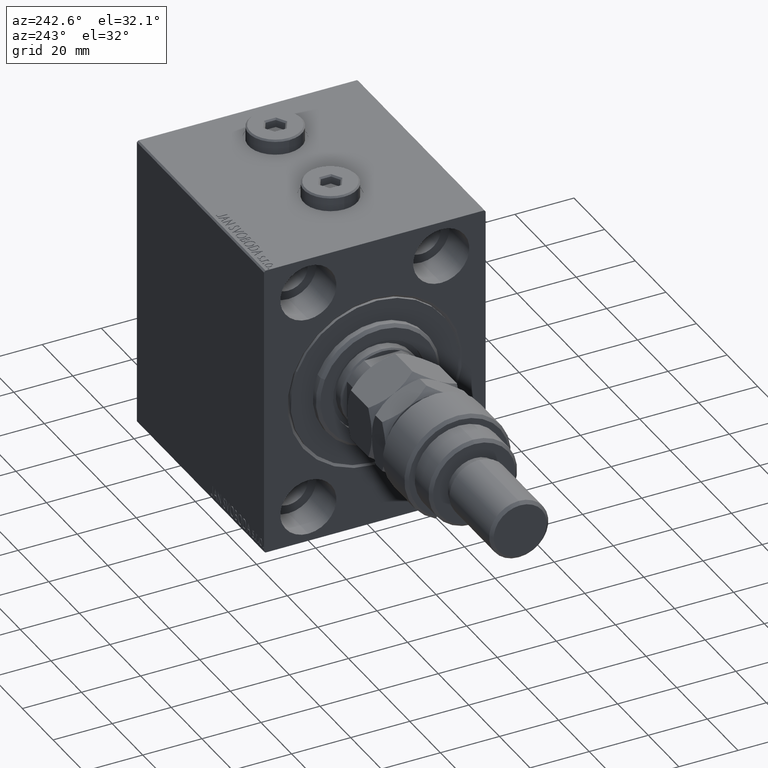
[diagram: clean part render]
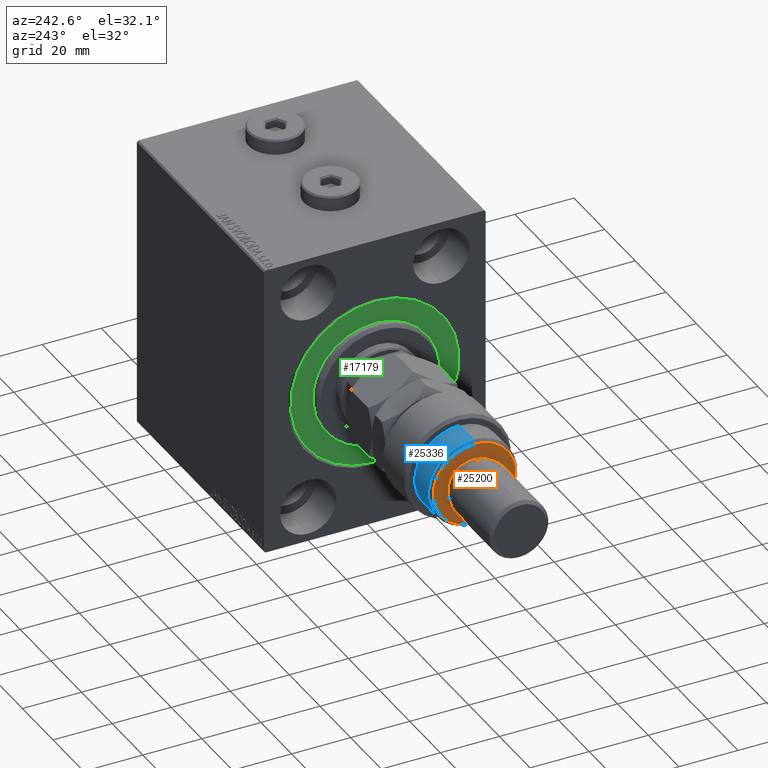
[diagram: same view with three faces highlighted in distinct colors, each labeled with its STEP entity id]
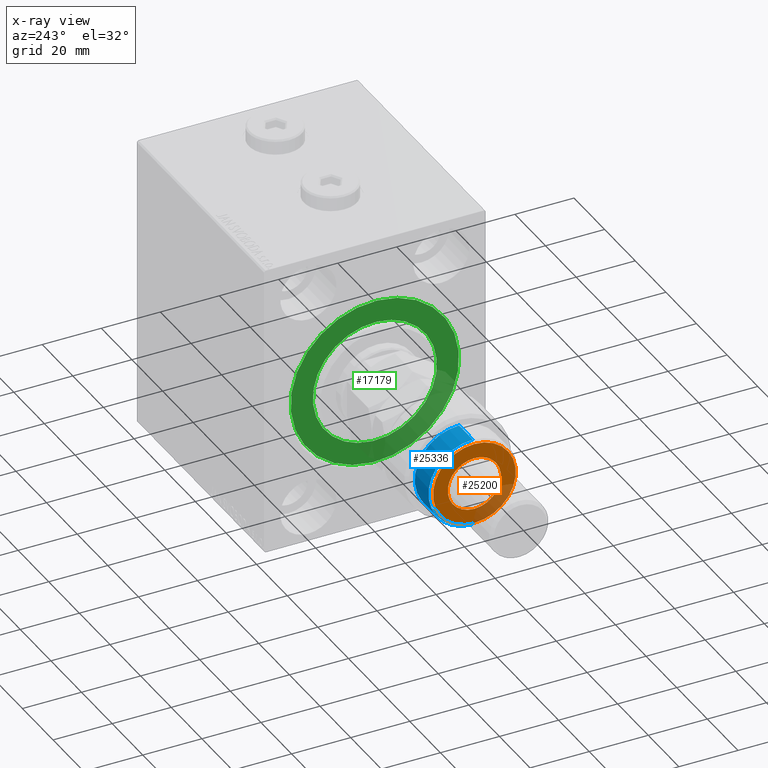
[diagram: x-ray of the same camera — body ghosted, the three highlighted faces saturated]
A machine part, auxiliary view with three faces highlighted in distinct colors.
The next image is the same camera in x-ray (body ghosted, the three faces saturated) — at least one of them is partly hidden behind the body in this view.
Their STEP definitions:

[orange] entity #25200 — the highlighted planar face has unit normal (-1, 0, 0).
#435 = EDGE_CURVE ( 'NONE', #39022, #21297, #44636, .T. ) ;
#3571 = AXIS2_PLACEMENT_3D ( 'NONE', #46064, #27644, #13564 ) ;
#3612 = CARTESIAN_POINT ( 'NONE',  ( 0.000000000000000000, 0.000000000000000000, 26.00000000000000355 ) ) ;
#5200 = DIRECTION ( 'NONE',  ( 0.000000000000000000, 0.000000000000000000, 1.000000000000000000 ) ) ;
#6119 = ORIENTED_EDGE ( 'NONE', *, *, #13909, .F. ) ;
#6900 = DIRECTION ( 'NONE',  ( 1.000000000000000000, 0.000000000000000000, -0.000000000000000000 ) ) ;
#8755 = CARTESIAN_POINT ( 'NONE',  ( -9.000000000000000000, 0.000000000000000000, 26.00000000000000355 ) ) ;
#9701 = CIRCLE ( 'NONE', #39936, 13.99999999999997513 ) ;
#10886 = CARTESIAN_POINT ( 'NONE',  ( 13.99999999999997513, 1.775737858763660437E-15, 26.00000000000000355 ) ) ;
#11979 = ORIENTED_EDGE ( 'NONE', *, *, #35409, .T. ) ;
#13564 = DIRECTION ( 'NONE',  ( 1.000000000000000000, 0.000000000000000000, 0.000000000000000000 ) ) ;
#13909 = EDGE_CURVE ( 'NONE', #21297, #39022, #22587, .T. ) ;
#14699 = CARTESIAN_POINT ( 'NONE',  ( 0.000000000000000000, 0.000000000000000000, 26.00000000000000355 ) ) ;
#16353 = CARTESIAN_POINT ( 'NONE',  ( 0.000000000000000000, 0.000000000000000000, 26.00000000000000355 ) ) ;
#18895 = DIRECTION ( 'NONE',  ( 1.000000000000000000, 0.000000000000000000, 0.000000000000000000 ) ) ;
#20911 = EDGE_LOOP ( 'NONE', ( #40581, #11979 ) ) ;
#21009 = PLANE ( 'NONE',  #32031 ) ;
#21297 = VERTEX_POINT ( 'NONE', #35972 ) ;
#21953 = FACE_OUTER_BOUND ( 'NONE', #20911, .T. ) ;
#22555 = DIRECTION ( 'NONE',  ( 0.000000000000000000, 0.000000000000000000, 1.000000000000000000 ) ) ;
#22587 = CIRCLE ( 'NONE', #26443, 9.000000000000000000 ) ;
#24292 = CIRCLE ( 'NONE', #32837, 13.99999999999997513 ) ;
#25200 = ADVANCED_FACE ( 'NONE', ( #21953, #36504 ), #21009, .T. ) ;
#25342 = DIRECTION ( 'NONE',  ( 0.000000000000000000, 0.000000000000000000, 1.000000000000000000 ) ) ;
#26443 = AXIS2_PLACEMENT_3D ( 'NONE', #16353, #5200, #31169 ) ;
#27467 = EDGE_LOOP ( 'NONE', ( #34026, #6119 ) ) ;
#27644 = DIRECTION ( 'NONE',  ( 0.000000000000000000, 0.000000000000000000, 1.000000000000000000 ) ) ;
#27912 = VERTEX_POINT ( 'NONE', #34404 ) ;
#30074 = VERTEX_POINT ( 'NONE', #10886 ) ;
#30817 = EDGE_CURVE ( 'NONE', #27912, #30074, #24292, .T. ) ;
#31169 = DIRECTION ( 'NONE',  ( 1.000000000000000000, 0.000000000000000000, 0.000000000000000000 ) ) ;
#32031 = AXIS2_PLACEMENT_3D ( 'NONE', #36733, #25342, #6900 ) ;
#32837 = AXIS2_PLACEMENT_3D ( 'NONE', #3612, #22555, #18895 ) ;
#34026 = ORIENTED_EDGE ( 'NONE', *, *, #435, .F. ) ;
#34404 = CARTESIAN_POINT ( 'NONE',  ( -13.99999999999997513, 0.000000000000000000, 26.00000000000000355 ) ) ;
#35409 = EDGE_CURVE ( 'NONE', #30074, #27912, #9701, .T. ) ;
#35972 = CARTESIAN_POINT ( 'NONE',  ( 9.000000000000000000, 1.102182119232617714E-15, 26.00000000000000355 ) ) ;
#36504 = FACE_BOUND ( 'NONE', #27467, .T. ) ;
#36733 = CARTESIAN_POINT ( 'NONE',  ( 0.000000000000000000, 0.000000000000000000, 26.00000000000000355 ) ) ;
#39022 = VERTEX_POINT ( 'NONE', #8755 ) ;
#39936 = AXIS2_PLACEMENT_3D ( 'NONE', #14699, #40152, #44032 ) ;
#40152 = DIRECTION ( 'NONE',  ( 0.000000000000000000, 0.000000000000000000, 1.000000000000000000 ) ) ;
#40581 = ORIENTED_EDGE ( 'NONE', *, *, #30817, .T. ) ;
#44032 = DIRECTION ( 'NONE',  ( 1.000000000000000000, 0.000000000000000000, 0.000000000000000000 ) ) ;
#44636 = CIRCLE ( 'NONE', #3571, 9.000000000000000000 ) ;
#46064 = CARTESIAN_POINT ( 'NONE',  ( 0.000000000000000000, 0.000000000000000000, 26.00000000000000355 ) ) ;

[blue] entity #25336 — the highlighted cylindrical surface (partial cylindrical patch) has radius 15 mm, axis along (1, -0, -0).
#1679 = EDGE_CURVE ( 'NONE', #29673, #27202, #12128, .T. ) ;
#2283 = CARTESIAN_POINT ( 'NONE',  ( -12.99038105676658006, 7.500000000000000000, 26.00000000000000355 ) ) ;
#2465 = CARTESIAN_POINT ( 'NONE',  ( -15.00000000000000000, 0.000000000000000000, 17.50000000000000000 ) ) ;
#4141 = VECTOR ( 'NONE', #11206, 1000.000000000000000 ) ;
#5167 = DIRECTION ( 'NONE',  ( -1.000000000000000000, 0.000000000000000000, 0.000000000000000000 ) ) ;
#5645 = CYLINDRICAL_SURFACE ( 'NONE', #39004, 15.00000000000000000 ) ;
#6133 = EDGE_CURVE ( 'NONE', #27398, #29266, #29198, .T. ) ;
#6169 = DIRECTION ( 'NONE',  ( 0.000000000000000000, 0.000000000000000000, 1.000000000000000000 ) ) ;
#7804 = CARTESIAN_POINT ( 'NONE',  ( -15.00000000000000000, 0.000000000000000000, 26.00000000000000355 ) ) ;
#8271 = AXIS2_PLACEMENT_3D ( 'NONE', #21272, #31448, #47203 ) ;
#8797 = EDGE_CURVE ( 'NONE', #23136, #39338, #15364, .T. ) ;
#10058 = CARTESIAN_POINT ( 'NONE',  ( 15.00000000000000000, 1.836970198721029589E-15, 26.00000000000000355 ) ) ;
#10378 = VECTOR ( 'NONE', #6169, 1000.000000000000000 ) ;
#10691 = AXIS2_PLACEMENT_3D ( 'NONE', #23436, #31186, #45491 ) ;
#11206 = DIRECTION ( 'NONE',  ( -0.000000000000000000, -0.000000000000000000, -1.000000000000000000 ) ) ;
#12113 = CARTESIAN_POINT ( 'NONE',  ( -12.99038105676658006, 7.500000000000000000, 16.00000000000000000 ) ) ;
#12128 = CIRCLE ( 'NONE', #36924, 15.00000000000000000 ) ;
#12495 = LINE ( 'NONE', #2283, #10378 ) ;
#14902 = CARTESIAN_POINT ( 'NONE',  ( -12.99038105676658006, 7.500000000000000000, 17.50000000000000000 ) ) ;
#15364 = CIRCLE ( 'NONE', #10691, 15.00000000000000000 ) ;
#16281 = ORIENTED_EDGE ( 'NONE', *, *, #8797, .T. ) ;
#16791 = CARTESIAN_POINT ( 'NONE',  ( 0.000000000000000000, 0.000000000000000000, 26.00000000000000355 ) ) ;
#17819 = DIRECTION ( 'NONE',  ( -0.000000000000000000, -0.000000000000000000, -1.000000000000000000 ) ) ;
#18965 = LINE ( 'NONE', #7804, #4141 ) ;
#20457 = DIRECTION ( 'NONE',  ( -0.000000000000000000, -0.000000000000000000, -1.000000000000000000 ) ) ;
#20695 = FACE_OUTER_BOUND ( 'NONE', #32530, .T. ) ;
#21272 = CARTESIAN_POINT ( 'NONE',  ( 0.000000000000000000, 0.000000000000000000, 17.50000000000000000 ) ) ;
#22004 = CARTESIAN_POINT ( 'NONE',  ( 0.000000000000000000, 0.000000000000000000, 24.99999999999997868 ) ) ;
#23136 = VERTEX_POINT ( 'NONE', #44862 ) ;
#23436 = CARTESIAN_POINT ( 'NONE',  ( 0.000000000000000000, 0.000000000000000000, 16.00000000000000000 ) ) ;
#25336 = ADVANCED_FACE ( 'NONE', ( #20695 ), #5645, .T. ) ;
#25666 = EDGE_CURVE ( 'NONE', #29673, #27398, #18965, .T. ) ;
#25704 = ORIENTED_EDGE ( 'NONE', *, *, #26988, .T. ) ;
#25781 = ORIENTED_EDGE ( 'NONE', *, *, #1679, .T. ) ;
#26515 = CARTESIAN_POINT ( 'NONE',  ( 15.00000000000000000, 1.836970198721029589E-15, 24.99999999999997868 ) ) ;
#26988 = EDGE_CURVE ( 'NONE', #39338, #29266, #12495, .T. ) ;
#27202 = VERTEX_POINT ( 'NONE', #26515 ) ;
#27398 = VERTEX_POINT ( 'NONE', #2465 ) ;
#29198 = CIRCLE ( 'NONE', #8271, 15.00000000000000000 ) ;
#29266 = VERTEX_POINT ( 'NONE', #14902 ) ;
#29673 = VERTEX_POINT ( 'NONE', #34986 ) ;
#31186 = DIRECTION ( 'NONE',  ( 0.000000000000000000, 0.000000000000000000, 1.000000000000000000 ) ) ;
#31448 = DIRECTION ( 'NONE',  ( 0.000000000000000000, 0.000000000000000000, -1.000000000000000000 ) ) ;
#32530 = EDGE_LOOP ( 'NONE', ( #25781, #38594, #16281, #25704, #39081, #33562 ) ) ;
#33562 = ORIENTED_EDGE ( 'NONE', *, *, #25666, .F. ) ;
#34986 = CARTESIAN_POINT ( 'NONE',  ( -15.00000000000000000, 0.000000000000000000, 24.99999999999997868 ) ) ;
#36262 = LINE ( 'NONE', #10058, #43335 ) ;
#36318 = DIRECTION ( 'NONE',  ( 0.000000000000000000, 0.000000000000000000, -1.000000000000000000 ) ) ;
#36924 = AXIS2_PLACEMENT_3D ( 'NONE', #22004, #36318, #40411 ) ;
#38594 = ORIENTED_EDGE ( 'NONE', *, *, #47908, .T. ) ;
#39004 = AXIS2_PLACEMENT_3D ( 'NONE', #16791, #20457, #5167 ) ;
#39081 = ORIENTED_EDGE ( 'NONE', *, *, #6133, .F. ) ;
#39338 = VERTEX_POINT ( 'NONE', #12113 ) ;
#40411 = DIRECTION ( 'NONE',  ( 1.000000000000000000, 0.000000000000000000, 0.000000000000000000 ) ) ;
#43335 = VECTOR ( 'NONE', #17819, 1000.000000000000000 ) ;
#44862 = CARTESIAN_POINT ( 'NONE',  ( 15.00000000000000000, 1.836970198721029589E-15, 16.00000000000000000 ) ) ;
#45491 = DIRECTION ( 'NONE',  ( 1.000000000000000000, 0.000000000000000000, 0.000000000000000000 ) ) ;
#47203 = DIRECTION ( 'NONE',  ( -1.000000000000000000, 0.000000000000000000, 0.000000000000000000 ) ) ;
#47908 = EDGE_CURVE ( 'NONE', #27202, #23136, #36262, .T. ) ;

[green] entity #17179 — the highlighted planar face has unit normal (1, 0, -0).
#1524 = DIRECTION ( 'NONE',  ( 1.000000000000000000, -0.000000000000000000, 0.000000000000000000 ) ) ;
#2144 = DIRECTION ( 'NONE',  ( -1.000000000000000000, 0.000000000000000000, 0.000000000000000000 ) ) ;
#2753 = VERTEX_POINT ( 'NONE', #14374 ) ;
#4097 = DIRECTION ( 'NONE',  ( 0.000000000000000000, 0.000000000000000000, 1.000000000000000000 ) ) ;
#4504 = ORIENTED_EDGE ( 'NONE', *, *, #42732, .F. ) ;
#5329 = AXIS2_PLACEMENT_3D ( 'NONE', #19539, #34332, #44276 ) ;
#7742 = FACE_OUTER_BOUND ( 'NONE', #22317, .T. ) ;
#8692 = CARTESIAN_POINT ( 'NONE',  ( 0.000000000000000000, 2.571758278209441661E-15, -21.00000000000000000 ) ) ;
#10146 = CARTESIAN_POINT ( 'NONE',  ( 0.000000000000000000, 0.000000000000000000, 0.000000000000000000 ) ) ;
#11777 = AXIS2_PLACEMENT_3D ( 'NONE', #33223, #17457, #29347 ) ;
#14374 = CARTESIAN_POINT ( 'NONE',  ( 0.000000000000000000, 0.000000000000000000, -28.50000000000000000 ) ) ;
#14708 = VERTEX_POINT ( 'NONE', #40641 ) ;
#15766 = CIRCLE ( 'NONE', #35911, 21.00000000000000000 ) ;
#16176 = CIRCLE ( 'NONE', #27788, 28.50000000000000000 ) ;
#17179 = ADVANCED_FACE ( 'NONE', ( #30541, #7742 ), #41199, .F. ) ;
#17457 = DIRECTION ( 'NONE',  ( -1.000000000000000000, 0.000000000000000000, 0.000000000000000000 ) ) ;
#18631 = AXIS2_PLACEMENT_3D ( 'NONE', #22562, #37339, #4097 ) ;
#19539 = CARTESIAN_POINT ( 'NONE',  ( 0.000000000000000000, 0.000000000000000000, 0.000000000000000000 ) ) ;
#20935 = EDGE_CURVE ( 'NONE', #14708, #2753, #29579, .T. ) ;
#21335 = DIRECTION ( 'NONE',  ( 0.000000000000000000, 0.000000000000000000, 1.000000000000000000 ) ) ;
#22317 = EDGE_LOOP ( 'NONE', ( #4504, #30214 ) ) ;
#22562 = CARTESIAN_POINT ( 'NONE',  ( 0.000000000000000000, 0.000000000000000000, 0.000000000000000000 ) ) ;
#25413 = EDGE_CURVE ( 'NONE', #31897, #41386, #15766, .T. ) ;
#27788 = AXIS2_PLACEMENT_3D ( 'NONE', #10146, #2144, #21335 ) ;
#29347 = DIRECTION ( 'NONE',  ( 0.000000000000000000, 0.000000000000000000, 1.000000000000000000 ) ) ;
#29579 = CIRCLE ( 'NONE', #11777, 28.50000000000000000 ) ;
#30214 = ORIENTED_EDGE ( 'NONE', *, *, #20935, .F. ) ;
#30541 = FACE_BOUND ( 'NONE', #39062, .T. ) ;
#30667 = ORIENTED_EDGE ( 'NONE', *, *, #46276, .F. ) ;
#31897 = VERTEX_POINT ( 'NONE', #8692 ) ;
#33223 = CARTESIAN_POINT ( 'NONE',  ( 0.000000000000000000, 0.000000000000000000, 0.000000000000000000 ) ) ;
#34332 = DIRECTION ( 'NONE',  ( 1.000000000000000000, -0.000000000000000000, 0.000000000000000000 ) ) ;
#34771 = CARTESIAN_POINT ( 'NONE',  ( 0.000000000000000000, 0.000000000000000000, 0.000000000000000000 ) ) ;
#34843 = ORIENTED_EDGE ( 'NONE', *, *, #25413, .F. ) ;
#35911 = AXIS2_PLACEMENT_3D ( 'NONE', #34771, #1524, #45913 ) ;
#37339 = DIRECTION ( 'NONE',  ( -1.000000000000000000, 0.000000000000000000, 0.000000000000000000 ) ) ;
#39062 = EDGE_LOOP ( 'NONE', ( #30667, #34843 ) ) ;
#40641 = CARTESIAN_POINT ( 'NONE',  ( 0.000000000000000000, 3.490243377569956456E-15, 28.50000000000000000 ) ) ;
#41199 = PLANE ( 'NONE',  #18631 ) ;
#41386 = VERTEX_POINT ( 'NONE', #46829 ) ;
#42732 = EDGE_CURVE ( 'NONE', #2753, #14708, #16176, .T. ) ;
#44276 = DIRECTION ( 'NONE',  ( 0.000000000000000000, 0.000000000000000000, -1.000000000000000000 ) ) ;
#45606 = CIRCLE ( 'NONE', #5329, 21.00000000000000000 ) ;
#45913 = DIRECTION ( 'NONE',  ( 0.000000000000000000, 0.000000000000000000, -1.000000000000000000 ) ) ;
#46276 = EDGE_CURVE ( 'NONE', #41386, #31897, #45606, .T. ) ;
#46829 = CARTESIAN_POINT ( 'NONE',  ( 0.000000000000000000, 0.000000000000000000, 21.00000000000000000 ) ) ;